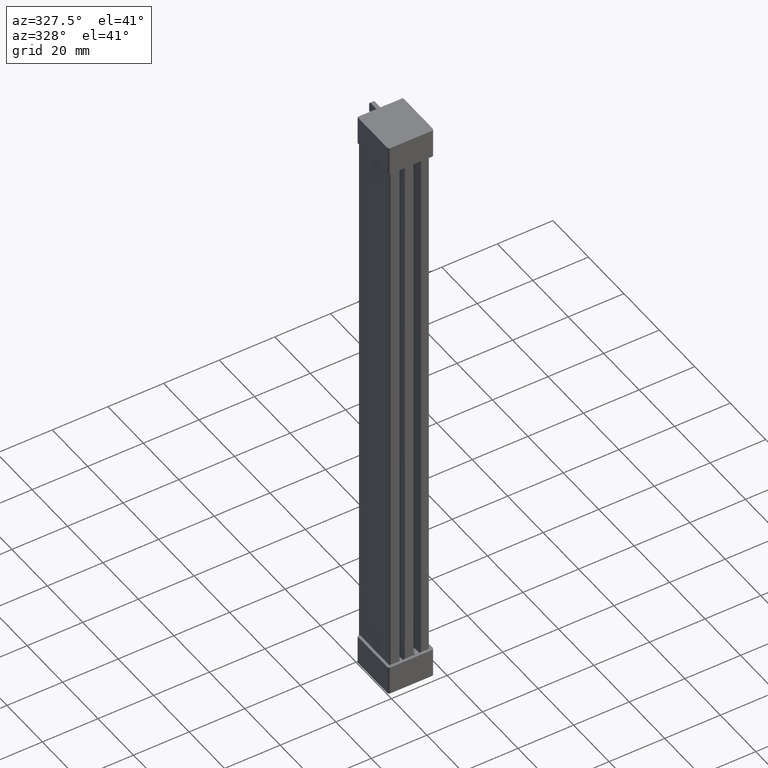
[diagram: clean part render]
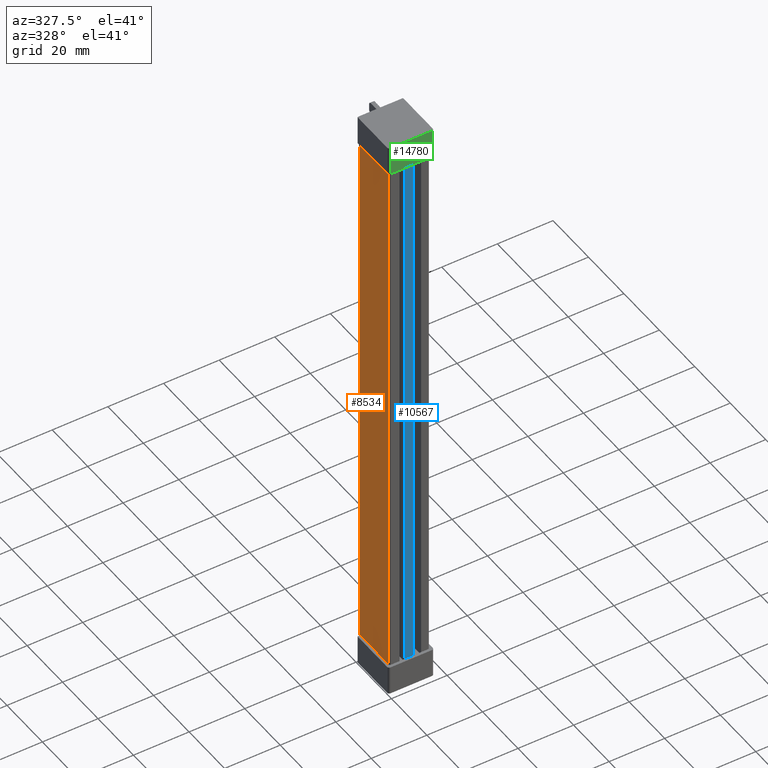
[diagram: same view with three faces highlighted in distinct colors, each labeled with its STEP entity id]
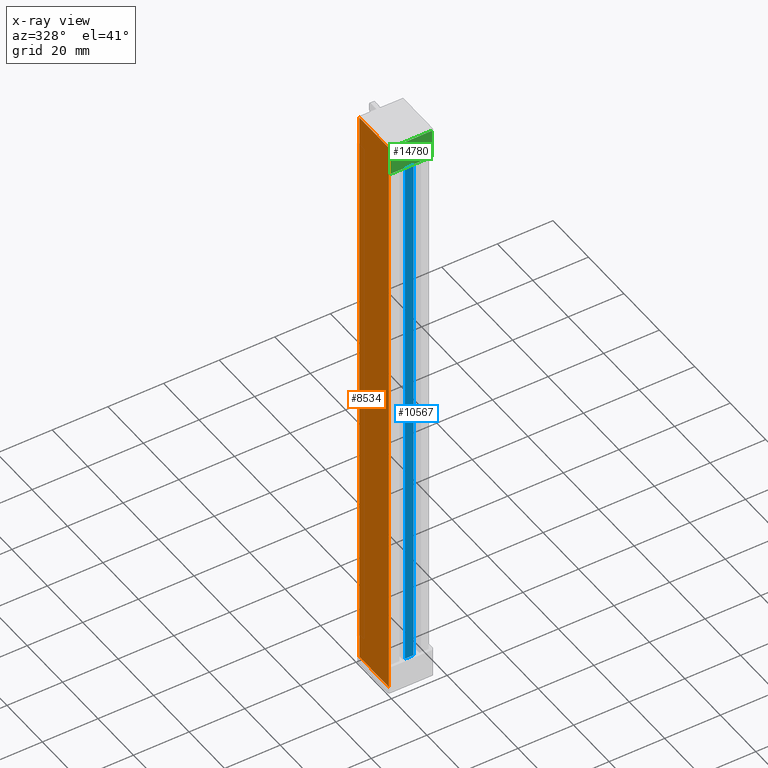
[diagram: x-ray of the same camera — body ghosted, the three highlighted faces saturated]
A machine part, auxiliary view with three faces highlighted in distinct colors.
The next image is the same camera in x-ray (body ghosted, the three faces saturated) — at least one of them is partly hidden behind the body in this view.
Their STEP definitions:

[orange] entity #8534 — the highlighted planar face has unit normal (-1, 0, 0).
#286 = CARTESIAN_POINT ( 'NONE',  ( -0.6240000000000559500, 16.49999999999970900, 1.199999999985240900 ) ) ;
#1136 = CARTESIAN_POINT ( 'NONE',  ( -0.6240000000000623900, 16.49999999999971600, 217.7999999999999800 ) ) ;
#1169 = CARTESIAN_POINT ( 'NONE',  ( -0.6240000000000559500, 17.19999999999998500, 1.200000000000000000 ) ) ;
#1185 = CARTESIAN_POINT ( 'NONE',  ( -0.6240000000000623900, 17.19999999999998500, 217.7999999999999800 ) ) ;
#2346 = CARTESIAN_POINT ( 'NONE',  ( -0.6240000000000559500, 0.5000000000000004400, 217.7999999999999800 ) ) ;
#2392 = CARTESIAN_POINT ( 'NONE',  ( -0.6240000000000559500, 0.5000000000000004400, 1.199999999970565100 ) ) ;
#3670 = DIRECTION ( 'NONE',  ( 0.0000000000000000000, 1.000000000000000000, 0.0000000000000000000 ) ) ;
#3675 = LINE ( 'NONE', #3676, #18990 ) ;
#3676 = CARTESIAN_POINT ( 'NONE',  ( -0.6240000000000689400, 1.249999999999640300, 217.7999999999999800 ) ) ;
#3894 = DIRECTION ( 'NONE',  ( -0.0000000000000000000, -1.000000000000000000, 0.0000000000000000000 ) ) ;
#3905 = LINE ( 'NONE', #3910, #18870 ) ;
#3910 = CARTESIAN_POINT ( 'NONE',  ( -0.6240000000000559500, -8.991461328757369000, 1.200000000000000000 ) ) ;
#3918 = LINE ( 'NONE', #3919, #18894 ) ;
#3919 = CARTESIAN_POINT ( 'NONE',  ( -0.6240000000000559500, -8.991461328757369000, 1.200000000000000000 ) ) ;
#3920 = DIRECTION ( 'NONE',  ( 0.0000000000000000000, -1.000000000000000000, -0.0000000000000000000 ) ) ;
#3928 = DIRECTION ( 'NONE',  ( 0.0000000000000000000, 0.0000000000000000000, 1.000000000000000000 ) ) ;
#3952 = LINE ( 'NONE', #3953, #18879 ) ;
#3953 = CARTESIAN_POINT ( 'NONE',  ( -0.6240000000000559500, 0.5000000000000004400, 220.2000000000000200 ) ) ;
#3973 = DIRECTION ( 'NONE',  ( -0.0000000000000000000, -0.0000000000000000000, -1.000000000000000000 ) ) ;
#3988 = CARTESIAN_POINT ( 'NONE',  ( -0.6240000000000559500, 17.19999999999998500, 220.2000000000000200 ) ) ;
#4007 = LINE ( 'NONE', #3988, #18944 ) ;
#4066 = CARTESIAN_POINT ( 'NONE',  ( -0.6240000000000559500, -8.991461328757369000, 217.7999999999999800 ) ) ;
#4080 = DIRECTION ( 'NONE',  ( 0.0000000000000000000, 1.000000000000000000, -0.0000000000000000000 ) ) ;
#4094 = LINE ( 'NONE', #4066, #18912 ) ;
#6225 = EDGE_CURVE ( 'NONE', #11968, #12036, #3905, .T. ) ;
#6239 = EDGE_CURVE ( 'NONE', #12036, #12040, #3952, .T. ) ;
#6246 = EDGE_CURVE ( 'NONE', #11915, #11968, #3918, .T. ) ;
#6259 = EDGE_CURVE ( 'NONE', #11942, #11915, #4007, .T. ) ;
#6281 = EDGE_CURVE ( 'NONE', #12040, #11887, #4094, .T. ) ;
#6316 = EDGE_CURVE ( 'NONE', #11887, #11942, #3675, .T. ) ;
#8534 = ADVANCED_FACE ( 'NONE', ( #20684 ), #20766, .T. ) ;
#11887 = VERTEX_POINT ( 'NONE', #1136 ) ;
#11915 = VERTEX_POINT ( 'NONE', #1169 ) ;
#11942 = VERTEX_POINT ( 'NONE', #1185 ) ;
#11968 = VERTEX_POINT ( 'NONE', #286 ) ;
#12036 = VERTEX_POINT ( 'NONE', #2392 ) ;
#12040 = VERTEX_POINT ( 'NONE', #2346 ) ;
#15446 = ORIENTED_EDGE ( 'NONE', *, *, #6259, .T. ) ;
#15457 = ORIENTED_EDGE ( 'NONE', *, *, #6225, .T. ) ;
#15472 = ORIENTED_EDGE ( 'NONE', *, *, #6316, .T. ) ;
#15497 = ORIENTED_EDGE ( 'NONE', *, *, #6246, .T. ) ;
#15498 = ORIENTED_EDGE ( 'NONE', *, *, #6239, .T. ) ;
#15511 = ORIENTED_EDGE ( 'NONE', *, *, #6281, .T. ) ;
#18870 = VECTOR ( 'NONE', #3894, 1000.000000000000000 ) ;
#18879 = VECTOR ( 'NONE', #3928, 1000.000000000000000 ) ;
#18894 = VECTOR ( 'NONE', #3920, 1000.000000000000000 ) ;
#18912 = VECTOR ( 'NONE', #4080, 1000.000000000000000 ) ;
#18944 = VECTOR ( 'NONE', #3973, 1000.000000000000000 ) ;
#18990 = VECTOR ( 'NONE', #3670, 1000.000000000000000 ) ;
#20684 = FACE_OUTER_BOUND ( 'NONE', #21420, .T. ) ;
#20710 = DIRECTION ( 'NONE',  ( -1.000000000000000000, 0.0000000000000000000, 0.0000000000000000000 ) ) ;
#20712 = DIRECTION ( 'NONE',  ( 0.0000000000000000000, 0.0000000000000000000, 1.000000000000000000 ) ) ;
#20764 = CARTESIAN_POINT ( 'NONE',  ( -0.6240000000000559500, -8.991461328757369000, 220.2000000000000200 ) ) ;
#20766 = PLANE ( 'NONE',  #23978 ) ;
#21420 = EDGE_LOOP ( 'NONE', ( #15446, #15497, #15457, #15498, #15511, #15472 ) ) ;
#23978 = AXIS2_PLACEMENT_3D ( 'NONE', #20764, #20710, #20712 ) ;

[blue] entity #10567 — the highlighted planar face has unit normal (0, 1, 0).
#72 = PLANE ( 'NONE',  #16720 ) ;
#73 = FACE_OUTER_BOUND ( 'NONE', #22082, .T. ) ;
#78 = CARTESIAN_POINT ( 'NONE',  ( 6.525548534933081500, -2.775557561562891400E-013, 219.0000000000000000 ) ) ;
#97 = DIRECTION ( 'NONE',  ( 0.0000000000000000000, -0.0000000000000000000, 1.000000000000000000 ) ) ;
#107 = DIRECTION ( 'NONE',  ( 0.0000000000000000000, 1.000000000000000000, 0.0000000000000000000 ) ) ;
#1034 = CARTESIAN_POINT ( 'NONE',  ( 4.849999999999909900, -2.775557561562891400E-013, 10.39999999994381200 ) ) ;
#1083 = CARTESIAN_POINT ( 'NONE',  ( 4.849999999999909900, -2.775557561562891400E-013, 208.6000000000561800 ) ) ;
#1134 = CARTESIAN_POINT ( 'NONE',  ( 7.950000000000123600, -2.775557561562891400E-013, 208.6000000000546200 ) ) ;
#1139 = CARTESIAN_POINT ( 'NONE',  ( 7.950000000000123600, -2.775557561562891400E-013, 10.39999999994536000 ) ) ;
#5213 = ORIENTED_EDGE ( 'NONE', *, *, #6023, .F. ) ;
#5272 = ORIENTED_EDGE ( 'NONE', *, *, #6047, .F. ) ;
#5304 = ORIENTED_EDGE ( 'NONE', *, *, #6122, .F. ) ;
#5316 = ORIENTED_EDGE ( 'NONE', *, *, #6049, .F. ) ;
#6023 = EDGE_CURVE ( 'NONE', #11836, #11844, #12602, .T. ) ;
#6047 = EDGE_CURVE ( 'NONE', #11849, #11836, #12689, .T. ) ;
#6049 = EDGE_CURVE ( 'NONE', #11844, #11840, #12678, .T. ) ;
#6122 = EDGE_CURVE ( 'NONE', #11840, #11849, #12920, .T. ) ;
#10567 = ADVANCED_FACE ( 'NONE', ( #73 ), #72, .F. ) ;
#11836 = VERTEX_POINT ( 'NONE', #1034 ) ;
#11840 = VERTEX_POINT ( 'NONE', #1134 ) ;
#11844 = VERTEX_POINT ( 'NONE', #1083 ) ;
#11849 = VERTEX_POINT ( 'NONE', #1139 ) ;
#12596 = DIRECTION ( 'NONE',  ( 0.0000000000000000000, -0.0000000000000000000, 1.000000000000000000 ) ) ;
#12602 = LINE ( 'NONE', #12614, #18602 ) ;
#12614 = CARTESIAN_POINT ( 'NONE',  ( 4.849999999999909100, -2.775557561562891400E-013, 219.0000000000000000 ) ) ;
#12678 = LINE ( 'NONE', #12688, #18637 ) ;
#12688 = CARTESIAN_POINT ( 'NONE',  ( 6.466000000103465900, -2.775557561562891400E-013, 208.6000000000553900 ) ) ;
#12689 = LINE ( 'NONE', #12691, #18692 ) ;
#12691 = CARTESIAN_POINT ( 'NONE',  ( 6.466000000103465900, -2.775557561562891400E-013, 10.39999999994461400 ) ) ;
#12692 = DIRECTION ( 'NONE',  ( -1.000000000000000000, 0.0000000000000000000, -4.965472477636011600E-013 ) ) ;
#12699 = DIRECTION ( 'NONE',  ( 1.000000000000000000, 0.0000000000000000000, -4.965472477636011600E-013 ) ) ;
#12892 = DIRECTION ( 'NONE',  ( -0.0000000000000000000, 0.0000000000000000000, -1.000000000000000000 ) ) ;
#12910 = CARTESIAN_POINT ( 'NONE',  ( 7.950000000000123600, -2.775557561562891400E-013, 219.0000000000000000 ) ) ;
#12920 = LINE ( 'NONE', #12910, #18732 ) ;
#16720 = AXIS2_PLACEMENT_3D ( 'NONE', #78, #107, #97 ) ;
#18602 = VECTOR ( 'NONE', #12596, 1000.000000000000000 ) ;
#18637 = VECTOR ( 'NONE', #12699, 1000.000000000000000 ) ;
#18692 = VECTOR ( 'NONE', #12692, 1000.000000000000000 ) ;
#18732 = VECTOR ( 'NONE', #12892, 1000.000000000000000 ) ;
#22082 = EDGE_LOOP ( 'NONE', ( #5316, #5213, #5272, #5304 ) ) ;

[green] entity #14780 — the highlighted planar face has unit normal (0, 1, 0).
#1015 = CARTESIAN_POINT ( 'NONE',  ( 13.91600000010917700, -1.000000000000389500, 219.0000000000553400 ) ) ;
#1088 = CARTESIAN_POINT ( 'NONE',  ( -0.9839999998959083600, -1.000000000000389500, 208.6000000000590800 ) ) ;
#1092 = CARTESIAN_POINT ( 'NONE',  ( 13.91600000010918100, -1.000000000000389500, 208.6000000000516900 ) ) ;
#1106 = CARTESIAN_POINT ( 'NONE',  ( -0.9839999998933263200, -1.000000000000389500, 219.0000000000590600 ) ) ;
#2901 = FACE_OUTER_BOUND ( 'NONE', #21487, .T. ) ;
#2908 = CARTESIAN_POINT ( 'NONE',  ( 6.466000000104061800, -1.000000000000389500, 209.8000000000553800 ) ) ;
#2930 = PLANE ( 'NONE',  #17102 ) ;
#2933 = DIRECTION ( 'NONE',  ( 0.0000000000000000000, 1.000000000000000000, 0.0000000000000000000 ) ) ;
#2937 = DIRECTION ( 'NONE',  ( 0.0000000000000000000, -0.0000000000000000000, 1.000000000000000000 ) ) ;
#3925 = DIRECTION ( 'NONE',  ( -1.000000000000000000, 0.0000000000000000000, 4.965472477636011600E-013 ) ) ;
#3930 = LINE ( 'NONE', #3954, #18950 ) ;
#3954 = CARTESIAN_POINT ( 'NONE',  ( 6.466000000103465900, -1.000000000000389500, 208.6000000000553900 ) ) ;
#6030 = EDGE_CURVE ( 'NONE', #11879, #11884, #12606, .T. ) ;
#6071 = EDGE_CURVE ( 'NONE', #11808, #11893, #12761, .T. ) ;
#6144 = EDGE_CURVE ( 'NONE', #11884, #11808, #12987, .T. ) ;
#6242 = EDGE_CURVE ( 'NONE', #11893, #11879, #3930, .T. ) ;
#11808 = VERTEX_POINT ( 'NONE', #1015 ) ;
#11879 = VERTEX_POINT ( 'NONE', #1088 ) ;
#11884 = VERTEX_POINT ( 'NONE', #1106 ) ;
#11893 = VERTEX_POINT ( 'NONE', #1092 ) ;
#12606 = LINE ( 'NONE', #12637, #18618 ) ;
#12637 = CARTESIAN_POINT ( 'NONE',  ( -0.9839999998959083600, -1.000000000000389500, 209.8000000000553800 ) ) ;
#12651 = DIRECTION ( 'NONE',  ( 0.0000000000000000000, -0.0000000000000000000, 1.000000000000000000 ) ) ;
#12761 = LINE ( 'NONE', #12762, #18675 ) ;
#12762 = CARTESIAN_POINT ( 'NONE',  ( 13.91600000010918100, -1.000000000000389500, 209.8000000000553800 ) ) ;
#12764 = DIRECTION ( 'NONE',  ( -0.0000000000000000000, 0.0000000000000000000, -1.000000000000000000 ) ) ;
#12984 = CARTESIAN_POINT ( 'NONE',  ( 6.466000000104061800, -1.000000000000389500, 219.0000000000590600 ) ) ;
#12987 = LINE ( 'NONE', #12984, #18700 ) ;
#12990 = DIRECTION ( 'NONE',  ( 1.000000000000000000, 0.0000000000000000000, -0.0000000000000000000 ) ) ;
#14780 = ADVANCED_FACE ( 'NONE', ( #2901 ), #2930, .F. ) ;
#15274 = ORIENTED_EDGE ( 'NONE', *, *, #6030, .F. ) ;
#15340 = ORIENTED_EDGE ( 'NONE', *, *, #6144, .F. ) ;
#15357 = ORIENTED_EDGE ( 'NONE', *, *, #6242, .F. ) ;
#15390 = ORIENTED_EDGE ( 'NONE', *, *, #6071, .F. ) ;
#17102 = AXIS2_PLACEMENT_3D ( 'NONE', #2908, #2933, #2937 ) ;
#18618 = VECTOR ( 'NONE', #12651, 1000.000000000000000 ) ;
#18675 = VECTOR ( 'NONE', #12764, 1000.000000000000000 ) ;
#18700 = VECTOR ( 'NONE', #12990, 1000.000000000000000 ) ;
#18950 = VECTOR ( 'NONE', #3925, 1000.000000000000000 ) ;
#21487 = EDGE_LOOP ( 'NONE', ( #15340, #15274, #15357, #15390 ) ) ;